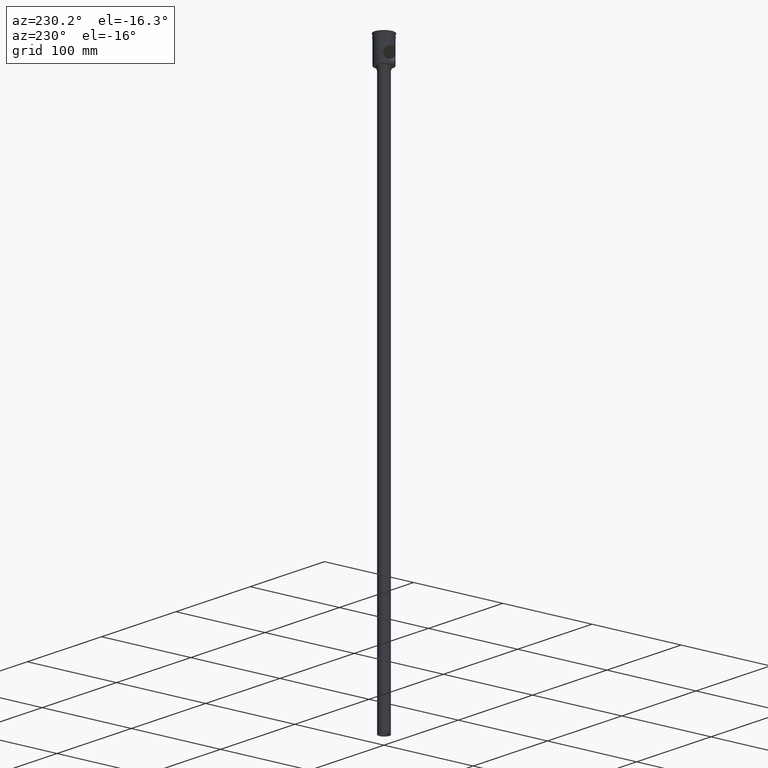
[diagram: clean part render]
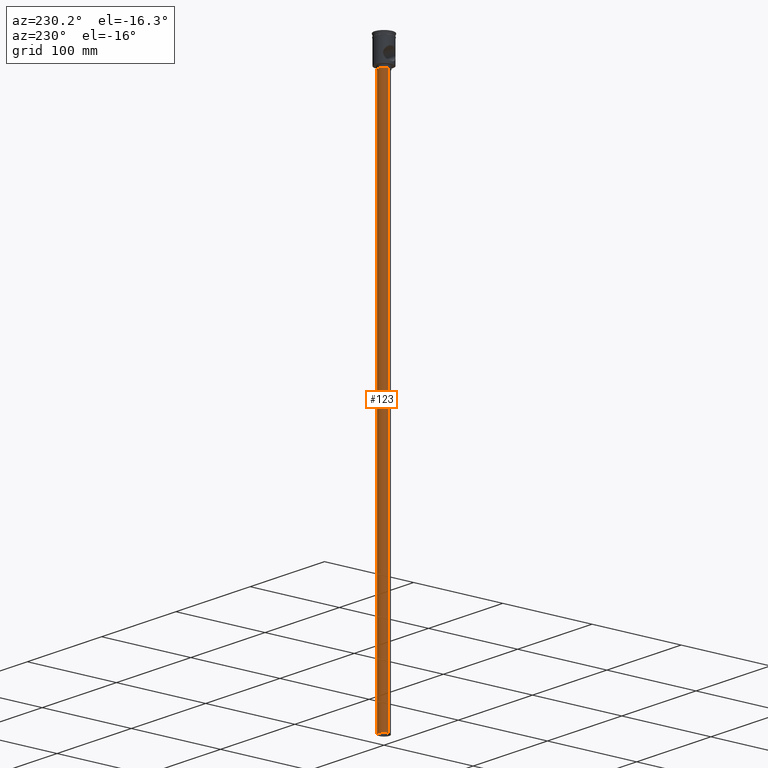
[diagram: same view with one face highlighted and labeled with its STEP entity id]
A machine part, auxiliary view. The second image highlights one B-rep face of the part: STEP entity #123.
In plain terms, the highlighted cylindrical surface (edge-blend (fillet) strip) has radius 6 mm, axis along (-0, -0, 1).
Its self-contained STEP definition (entity closure, byte-faithful):
#22 = ORIENTED_EDGE ( 'NONE', *, *, #617, .F. ) ;
#72 = CARTESIAN_POINT ( 'NONE',  ( 6.000000000000000888, 0.000000000000000000, -32.50000000000000000 ) ) ;
#100 = DIRECTION ( 'NONE',  ( -1.000000000000000000, 0.000000000000000000, 0.000000000000000000 ) ) ;
#106 = VERTEX_POINT ( 'NONE', #550 ) ;
#123 = ADVANCED_FACE ( 'NONE', ( #771 ), #536, .T. ) ;
#200 = VERTEX_POINT ( 'NONE', #820 ) ;
#293 = AXIS2_PLACEMENT_3D ( 'NONE', #1063, #1048, #100 ) ;
#320 = EDGE_LOOP ( 'NONE', ( #22, #988, #360, #1189 ) ) ;
#341 = CIRCLE ( 'NONE', #809, 6.000000000000000888 ) ;
#346 = DIRECTION ( 'NONE',  ( -0.000000000000000000, -0.000000000000000000, 1.000000000000000000 ) ) ;
#360 = ORIENTED_EDGE ( 'NONE', *, *, #1085, .T. ) ;
#427 = DIRECTION ( 'NONE',  ( 1.000000000000000000, 0.000000000000000000, 0.000000000000000000 ) ) ;
#506 = EDGE_CURVE ( 'NONE', #106, #1249, #1528, .T. ) ;
#536 = CYLINDRICAL_SURFACE ( 'NONE', #885, 6.000000000000000888 ) ;
#550 = CARTESIAN_POINT ( 'NONE',  ( 6.000000000000000888, 0.000000000000000000, -629.5000000000000000 ) ) ;
#617 = EDGE_CURVE ( 'NONE', #200, #106, #838, .T. ) ;
#632 = DIRECTION ( 'NONE',  ( -0.000000000000000000, -0.000000000000000000, 1.000000000000000000 ) ) ;
#663 = VECTOR ( 'NONE', #346, 1000.000000000000000 ) ;
#771 = FACE_OUTER_BOUND ( 'NONE', #320, .T. ) ;
#791 = CARTESIAN_POINT ( 'NONE',  ( 0.000000000000000000, 0.000000000000000000, -629.5000000000000000 ) ) ;
#809 = AXIS2_PLACEMENT_3D ( 'NONE', #1344, #989, #1474 ) ;
#820 = CARTESIAN_POINT ( 'NONE',  ( -6.000000000000000888, 7.347880794884120722E-16, -629.5000000000000000 ) ) ;
#838 = CIRCLE ( 'NONE', #293, 6.000000000000000888 ) ;
#873 = CARTESIAN_POINT ( 'NONE',  ( -6.000000000000000888, 7.347880794884120722E-16, -32.50000000000000000 ) ) ;
#874 = EDGE_CURVE ( 'NONE', #200, #917, #1150, .T. ) ;
#885 = AXIS2_PLACEMENT_3D ( 'NONE', #791, #1253, #427 ) ;
#889 = VECTOR ( 'NONE', #632, 1000.000000000000000 ) ;
#917 = VERTEX_POINT ( 'NONE', #873 ) ;
#988 = ORIENTED_EDGE ( 'NONE', *, *, #874, .T. ) ;
#989 = DIRECTION ( 'NONE',  ( 0.000000000000000000, 0.000000000000000000, -1.000000000000000000 ) ) ;
#1048 = DIRECTION ( 'NONE',  ( 0.000000000000000000, 0.000000000000000000, -1.000000000000000000 ) ) ;
#1063 = CARTESIAN_POINT ( 'NONE',  ( 0.000000000000000000, 0.000000000000000000, -629.5000000000000000 ) ) ;
#1085 = EDGE_CURVE ( 'NONE', #917, #1249, #341, .T. ) ;
#1150 = LINE ( 'NONE', #1256, #889 ) ;
#1189 = ORIENTED_EDGE ( 'NONE', *, *, #506, .F. ) ;
#1249 = VERTEX_POINT ( 'NONE', #72 ) ;
#1253 = DIRECTION ( 'NONE',  ( -0.000000000000000000, -0.000000000000000000, 1.000000000000000000 ) ) ;
#1256 = CARTESIAN_POINT ( 'NONE',  ( -6.000000000000000888, 7.347880794884120722E-16, -629.5000000000000000 ) ) ;
#1344 = CARTESIAN_POINT ( 'NONE',  ( 0.000000000000000000, 0.000000000000000000, -32.50000000000000000 ) ) ;
#1398 = CARTESIAN_POINT ( 'NONE',  ( 6.000000000000000888, 0.000000000000000000, -629.5000000000000000 ) ) ;
#1474 = DIRECTION ( 'NONE',  ( -1.000000000000000000, 0.000000000000000000, 0.000000000000000000 ) ) ;
#1528 = LINE ( 'NONE', #1398, #663 ) ;